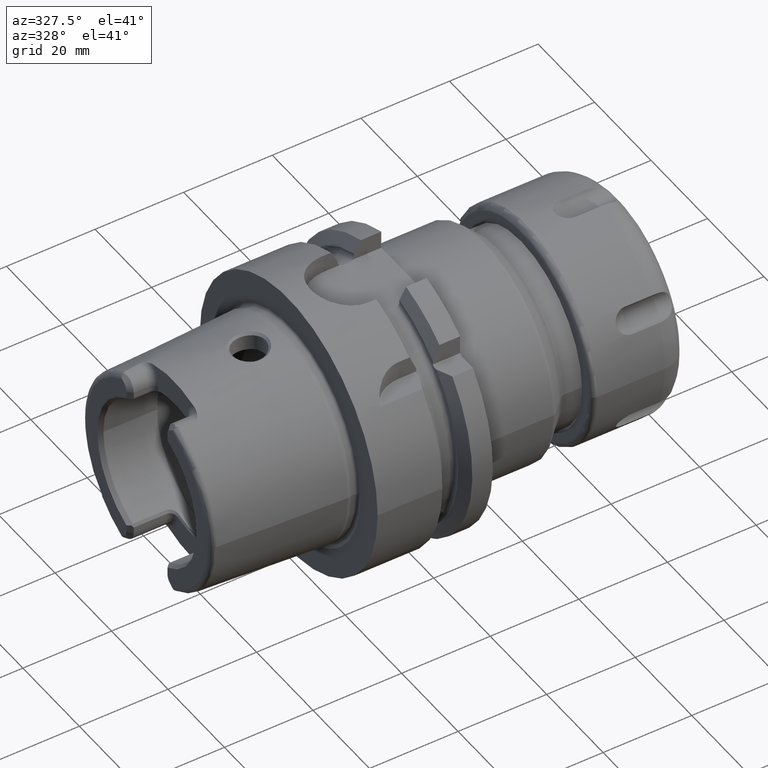
[diagram: clean part render]
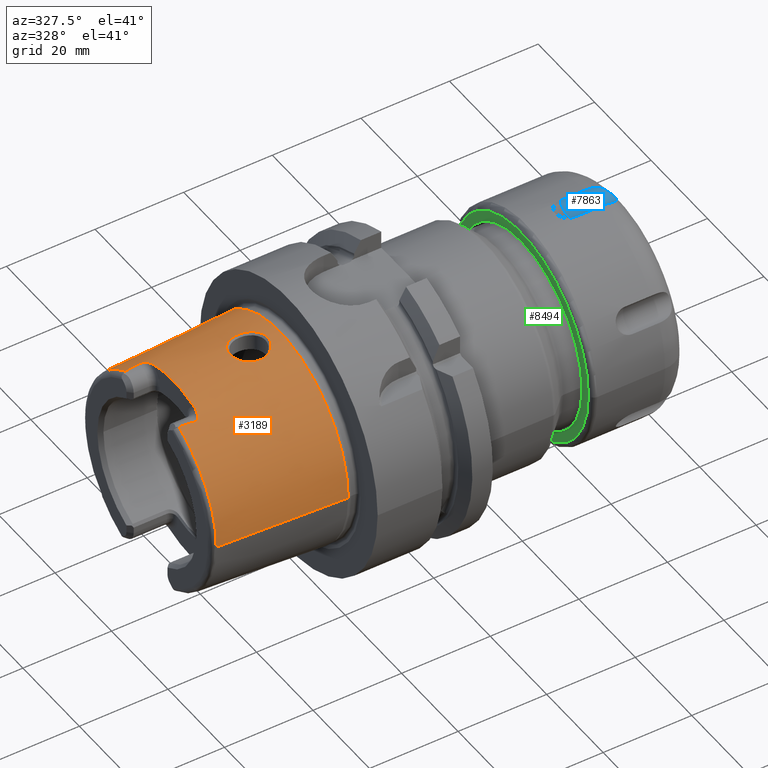
[diagram: same view with three faces highlighted in distinct colors, each labeled with its STEP entity id]
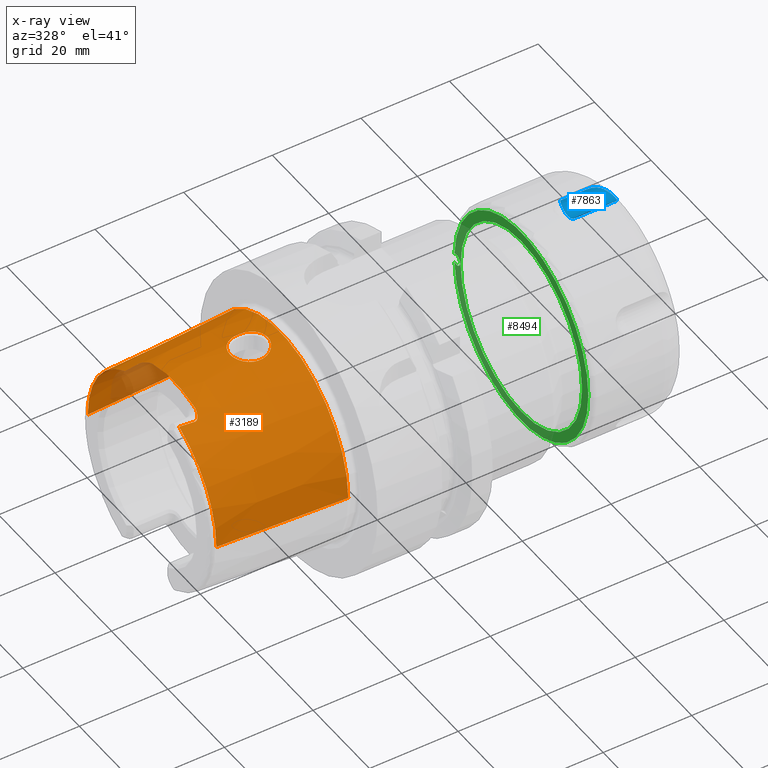
[diagram: x-ray of the same camera — body ghosted, the three highlighted faces saturated]
A machine part, auxiliary view with three faces highlighted in distinct colors.
The next image is the same camera in x-ray (body ghosted, the three faces saturated) — at least one of them is partly hidden behind the body in this view.
Their STEP definitions:

[orange] entity #3189 — the highlighted conical surface has half-angle 2.868 deg.
#2=CARTESIAN_POINT('',(-3.086004306431E1,-9.562027931336E0,2.067E1));
#3=CARTESIAN_POINT('',(-3.049253157278E1,-9.605880711653E0,2.067E1));
#4=CARTESIAN_POINT('',(-2.975362396220E1,-9.693552821268E0,2.067E1));
#5=CARTESIAN_POINT('',(-2.863363692789E1,-9.824971306479E0,2.067E1));
#6=CARTESIAN_POINT('',(-2.787917629619E1,-9.912538799101E0,2.067E1));
#7=CARTESIAN_POINT('',(-2.75E1,-9.956312881929E0,2.067E1));
#9=CARTESIAN_POINT('',(-2.6E1,0.E0,0.E0));
#10=DIRECTION('',(1.E0,0.E0,0.E0));
#11=DIRECTION('',(0.E0,3.233021702202E-1,9.462957818415E-1));
#12=AXIS2_PLACEMENT_3D('',#9,#10,#11);
#14=CARTESIAN_POINT('',(-2.75E1,9.956312881929E0,2.067E1));
#15=CARTESIAN_POINT('',(-2.787916500946E1,9.912540102101E0,2.067E1));
#16=CARTESIAN_POINT('',(-2.863361059702E1,9.824974374327E0,2.067E1));
#17=CARTESIAN_POINT('',(-2.975359777716E1,9.693555915617E0,2.067E1));
#18=CARTESIAN_POINT('',(-3.049252035285E1,9.605882050456E0,2.067E1));
#19=CARTESIAN_POINT('',(-3.086004306431E1,9.562027931336E0,2.067E1));
#21=CARTESIAN_POINT('',(-2.E0,0.E0,0.E0));
#22=DIRECTION('',(1.E0,0.E0,0.E0));
#23=DIRECTION('',(0.E0,1.E0,0.E0));
#24=AXIS2_PLACEMENT_3D('',#21,#22,#23);
#26=CARTESIAN_POINT('',(-1.324941786023E1,-7.219004501044E-9,2.365679941218E1));
#27=CARTESIAN_POINT('',(-1.324962652857E1,2.128419836803E-1,2.365678895818E1));
#28=CARTESIAN_POINT('',(-1.321789572653E1,6.392154004916E-1,2.365279437370E1));
#29=CARTESIAN_POINT('',(-1.306583173353E1,1.295455377947E0,2.363353567605E1));
#30=CARTESIAN_POINT('',(-1.280774848226E1,1.924363159712E0,2.360322882883E1));
#31=CARTESIAN_POINT('',(-1.245682539685E1,2.498002640667E0,2.356658532007E1));
#32=CARTESIAN_POINT('',(-1.202590717647E1,3.003748276320E0,2.352875153285E1));
#33=CARTESIAN_POINT('',(-1.151587453193E1,3.440667161266E0,2.349418467003E1));
#34=CARTESIAN_POINT('',(-1.094488701051E1,3.790928519035E0,2.346872738592E1));
#35=CARTESIAN_POINT('',(-1.032606556195E1,4.047968073685E0,2.345686676513E1));
#36=CARTESIAN_POINT('',(-9.674487886290E0,4.205448144478E0,2.346208039452E1));
#37=CARTESIAN_POINT('',(-9.005382482159E0,4.259666064034E0,2.348629251751E1));
#38=CARTESIAN_POINT('',(-8.334406518885E0,4.208654245636E0,2.352972397238E1));
#39=CARTESIAN_POINT('',(-7.678583145358E0,4.052835118832E0,2.359064506703E1));
#40=CARTESIAN_POINT('',(-7.054746219975E0,3.795297178824E0,2.366546684138E1));
#41=CARTESIAN_POINT('',(-6.478384090661E0,3.441929617339E0,2.374909717224E1));
#42=CARTESIAN_POINT('',(-5.963720829785E0,2.998888105398E0,2.383556837714E1));
#43=CARTESIAN_POINT('',(-5.531697254110E0,2.487245477785E0,2.391660020727E1));
#44=CARTESIAN_POINT('',(-5.183622696567E0,1.910877761534E0,2.398748891792E1));
#45=CARTESIAN_POINT('',(-4.930520871648E0,1.285429316774E0,2.404215083473E1));
#46=CARTESIAN_POINT('',(-4.781592632661E0,6.352567731875E-1,2.407559904029E1));
#47=CARTESIAN_POINT('',(-4.750478792548E0,2.114683342023E-1,2.408258846670E1));
#48=CARTESIAN_POINT('',(-4.750585905229E0,7.197553449570E-9,2.408258310050E1));
#50=CARTESIAN_POINT('',(-4.750585905229E0,7.197553449570E-9,2.408258310050E1));
#51=CARTESIAN_POINT('',(-4.750395627959E0,-2.105069288240E-1,2.408259263313E1));
#52=CARTESIAN_POINT('',(-4.781309836194E0,-6.330630552620E-1,2.407566909301E1));
#53=CARTESIAN_POINT('',(-4.930068182376E0,-1.284334675678E0,2.404224817580E1));
#54=CARTESIAN_POINT('',(-5.183732271360E0,-1.911208248299E0,2.398746160179E1));
#55=CARTESIAN_POINT('',(-5.531554832014E0,-2.486758661206E0,2.391664059803E1));
#56=CARTESIAN_POINT('',(-5.960736101322E0,-2.995606004120E0,2.383611484308E1));
#57=CARTESIAN_POINT('',(-6.472413726219E0,-3.437431533938E0,2.375005151539E1));
#58=CARTESIAN_POINT('',(-7.047774921505E0,-3.791791568104E0,2.366638920783E1));
#59=CARTESIAN_POINT('',(-7.671990993959E0,-4.050736119112E0,2.359134441504E1));
#60=CARTESIAN_POINT('',(-8.327799970975E0,-4.207619640495E0,2.353024681340E1));
#61=CARTESIAN_POINT('',(-8.998662135271E0,-4.259680399888E0,2.348663216787E1));
#62=CARTESIAN_POINT('',(-9.668037445633E0,-4.206488328283E0,2.346222081393E1));
#63=CARTESIAN_POINT('',(-1.031990079178E1,-4.049961979503E0,2.345683302195E1));
#64=CARTESIAN_POINT('',(-1.093870323089E1,-3.794046262990E0,2.346853209808E1));
#65=CARTESIAN_POINT('',(-1.151051650685E1,-3.444658410973E0,2.349386945058E1));
#66=CARTESIAN_POINT('',(-1.202283712979E1,-3.007012911900E0,2.352850073603E1));
#67=CARTESIAN_POINT('',(-1.245609200384E1,-2.499248587590E0,2.356650362943E1));
#68=CARTESIAN_POINT('',(-1.280745559330E1,-1.924878595842E0,2.360319856514E1));
#69=CARTESIAN_POINT('',(-1.306526541006E1,-1.297000138509E0,2.363346880977E1));
#70=CARTESIAN_POINT('',(-1.321765204718E1,-6.412116938996E-1,2.365275767433E1));
#71=CARTESIAN_POINT('',(-1.324954460014E1,-2.136894906074E-1,2.365679306269E1));
#72=CARTESIAN_POINT('',(-1.324941786023E1,-7.219004501044E-9,2.365679941218E1));
#82=CARTESIAN_POINT('',(-2.651259296226E1,-9.27E0,2.104082891384E1));
#83=CARTESIAN_POINT('',(-2.655060528934E1,-9.340723960488E0,2.100758892059E1));
#84=CARTESIAN_POINT('',(-2.663038504623E1,-9.471838743333E0,2.094458948833E1));
#85=CARTESIAN_POINT('',(-2.676092291608E1,-9.637362323001E0,2.086163997968E1));
#86=CARTESIAN_POINT('',(-2.690131837165E1,-9.770899105642E0,2.079157611E1));
#87=CARTESIAN_POINT('',(-2.705226454993E1,-9.871852756963E0,2.073538687848E1));
#88=CARTESIAN_POINT('',(-2.720441776005E1,-9.934823835429E0,2.069678496112E1));
#89=CARTESIAN_POINT('',(-2.735189841416E1,-9.963277454574E0,2.067488149845E1));
#90=CARTESIAN_POINT('',(-2.745092740764E1,-9.961978077101E0,2.067E1));
#91=CARTESIAN_POINT('',(-2.75E1,-9.956312881929E0,2.067E1));
#93=CARTESIAN_POINT('',(-2.6E1,-7.441787718571E0,2.178189005860E1));
#94=CARTESIAN_POINT('',(-2.6E1,-7.574673232080E0,2.173648969253E1));
#95=CARTESIAN_POINT('',(-2.601813511197E1,-7.850865569829E0,2.163846841914E1));
#96=CARTESIAN_POINT('',(-2.610760114915E1,-8.297034966034E0,2.146679982993E1));
#97=CARTESIAN_POINT('',(-2.626559360892E1,-8.768529603152E0,2.127027062942E1));
#98=CARTESIAN_POINT('',(-2.642147165719E1,-9.100463955368E0,2.112051021193E1));
#99=CARTESIAN_POINT('',(-2.651259296226E1,-9.27E0,2.104082891384E1));
#185=CARTESIAN_POINT('',(-3.086004306431E1,0.E0,0.E0));
#186=DIRECTION('',(1.E0,0.E0,0.E0));
#187=DIRECTION('',(0.E0,1.E0,0.E0));
#188=AXIS2_PLACEMENT_3D('',#185,#186,#187);
#196=CARTESIAN_POINT('',(-3.086004306431E1,9.562027931336E0,2.067E1));
#261=CARTESIAN_POINT('',(-3.086004306431E1,0.E0,0.E0));
#262=DIRECTION('',(1.E0,0.E0,0.E0));
#263=DIRECTION('',(0.E0,-4.198553792210E-1,9.075910205259E-1));
#264=AXIS2_PLACEMENT_3D('',#261,#262,#263);
#457=CARTESIAN_POINT('',(-2.651259296226E1,9.27E0,2.104082891384E1));
#458=CARTESIAN_POINT('',(-2.642147038701E1,9.100461592138E0,2.112051132264E1));
#459=CARTESIAN_POINT('',(-2.626559126698E1,8.768524006326E0,2.127027307791E1));
#460=CARTESIAN_POINT('',(-2.610760038346E1,8.297031203136E0,2.146680127908E1));
#461=CARTESIAN_POINT('',(-2.601813556642E1,7.850867870131E0,2.163846753656E1));
#462=CARTESIAN_POINT('',(-2.6E1,7.574674433427E0,2.173648928209E1));
#463=CARTESIAN_POINT('',(-2.6E1,7.441787718571E0,2.178189005860E1));
#497=CARTESIAN_POINT('',(-2.75E1,9.956312881929E0,2.067E1));
#498=CARTESIAN_POINT('',(-2.745017853421E1,9.962064530943E0,2.067E1));
#499=CARTESIAN_POINT('',(-2.734992708669E1,9.963297705486E0,2.067498167063E1));
#500=CARTESIAN_POINT('',(-2.719976747307E1,9.933459927686E0,2.069769932459E1));
#501=CARTESIAN_POINT('',(-2.704939607884E1,9.870085988272E0,2.073638612523E1));
#502=CARTESIAN_POINT('',(-2.690048936387E1,9.770127639355E0,2.079198258623E1));
#503=CARTESIAN_POINT('',(-2.676049508867E1,9.636879759274E0,2.086188624037E1));
#504=CARTESIAN_POINT('',(-2.663016689843E1,9.471495400784E0,2.094475592633E1));
#505=CARTESIAN_POINT('',(-2.655053916050E1,9.340600924250E0,2.100764674716E1));
#506=CARTESIAN_POINT('',(-2.651259296226E1,9.27E0,2.104082891384E1));
#763=DIRECTION('',(-9.987474205320E-1,5.003588692862E-2,0.E0));
#764=VECTOR('',#763,2.889623789861E1);
#765=CARTESIAN_POINT('',(-2.E0,-2.422042414966E1,0.E0));
#766=LINE('',#765,#764);
#772=DIRECTION('',(-9.987474205320E-1,-5.003588692862E-2,0.E0));
#773=VECTOR('',#772,2.889623789861E1);
#774=CARTESIAN_POINT('',(-2.E0,2.422042414966E1,0.E0));
#775=LINE('',#774,#773);
#2688=CARTESIAN_POINT('',(-2.E0,2.422042414966E1,0.E0));
#2689=CARTESIAN_POINT('',(-2.E0,-2.422042414966E1,0.E0));
#2690=VERTEX_POINT('',#2688);
#2691=VERTEX_POINT('',#2689);
#2692=CARTESIAN_POINT('',(-3.086004306431E1,2.277457525750E1,0.E0));
#2693=VERTEX_POINT('',#2692);
#2694=CARTESIAN_POINT('',(-3.086004306431E1,-2.277457525750E1,0.E0));
#2695=VERTEX_POINT('',#2694);
#2733=VERTEX_POINT('',#196);
#2734=CARTESIAN_POINT('',(-3.086004306431E1,-9.562027931336E0,2.067E1));
#2735=VERTEX_POINT('',#2734);
#2745=CARTESIAN_POINT('',(-2.6E1,7.441787718571E0,2.178189005860E1));
#2746=VERTEX_POINT('',#2745);
#2749=CARTESIAN_POINT('',(-2.75E1,9.956312881929E0,2.067E1));
#2750=VERTEX_POINT('',#2749);
#2751=CARTESIAN_POINT('',(-2.6E1,-7.441787718571E0,2.178189005860E1));
#2752=VERTEX_POINT('',#2751);
#2755=CARTESIAN_POINT('',(-2.75E1,-9.956312881929E0,2.067E1));
#2756=VERTEX_POINT('',#2755);
#2757=VERTEX_POINT('',#506);
#2758=VERTEX_POINT('',#82);
#2899=VERTEX_POINT('',#26);
#2900=VERTEX_POINT('',#48);
#3152=CARTESIAN_POINT('',(-1.643002153216E1,0.E0,0.E0));
#3153=DIRECTION('',(1.E0,0.E0,0.E0));
#3154=DIRECTION('',(0.E0,-1.E0,0.E0));
#3155=AXIS2_PLACEMENT_3D('',#3152,#3153,#3154);
#3156=CONICAL_SURFACE('',#3155,2.349749970358E1,2.868042729042E0);
#3158=ORIENTED_EDGE('',*,*,#3157,.T.);
#3160=ORIENTED_EDGE('',*,*,#3159,.F.);
#3162=ORIENTED_EDGE('',*,*,#3161,.F.);
#3164=ORIENTED_EDGE('',*,*,#3163,.F.);
#3166=ORIENTED_EDGE('',*,*,#3165,.F.);
#3168=ORIENTED_EDGE('',*,*,#3167,.F.);
#3170=ORIENTED_EDGE('',*,*,#3169,.T.);
#3172=ORIENTED_EDGE('',*,*,#3171,.F.);
#3174=ORIENTED_EDGE('',*,*,#3173,.F.);
#3176=ORIENTED_EDGE('',*,*,#3175,.T.);
#3178=ORIENTED_EDGE('',*,*,#3177,.T.);
#3180=ORIENTED_EDGE('',*,*,#3179,.F.);
#3181=EDGE_LOOP('',(#3158,#3160,#3162,#3164,#3166,#3168,#3170,#3172,#3174,#3176,
#3178,#3180));
#3182=FACE_OUTER_BOUND('',#3181,.F.);
#3184=ORIENTED_EDGE('',*,*,#3183,.F.);
#3186=ORIENTED_EDGE('',*,*,#3185,.F.);
#3187=EDGE_LOOP('',(#3184,#3186));
#3188=FACE_BOUND('',#3187,.F.);
#3189=ADVANCED_FACE('',(#3182,#3188),#3156,.T.);
#8=B_SPLINE_CURVE_WITH_KNOTS('',3,(#2,#3,#4,#5,#6,#7),.UNSPECIFIED.,.F.,.F.,(4,
1,1,4),(0.E0,3.333333333333E-1,6.666666666667E-1,1.E0),.UNSPECIFIED.);
#13=CIRCLE('',#12,2.301805680272E1);
#20=B_SPLINE_CURVE_WITH_KNOTS('',3,(#14,#15,#16,#17,#18,#19),.UNSPECIFIED.,.F.,
.F.,(4,1,1,4),(0.E0,3.333333333333E-1,6.666666666667E-1,1.E0),.UNSPECIFIED.);
#25=CIRCLE('',#24,2.422042414966E1);
#49=B_SPLINE_CURVE_WITH_KNOTS('',3,(#26,#27,#28,#29,#30,#31,#32,#33,#34,#35,#36,
#37,#38,#39,#40,#41,#42,#43,#44,#45,#46,#47,#48),.UNSPECIFIED.,.F.,.F.,(4,1,1,1,
1,1,1,1,1,1,1,1,1,1,1,1,1,1,1,1,4),(0.E0,5.E-2,1.E-1,1.5E-1,2.E-1,2.5E-1,3.E-1,
3.5E-1,4.E-1,4.5E-1,5.E-1,5.5E-1,6.E-1,6.5E-1,7.E-1,7.5E-1,8.E-1,8.5E-1,9.E-1,
9.5E-1,1.E0),.UNSPECIFIED.);
#73=B_SPLINE_CURVE_WITH_KNOTS('',3,(#50,#51,#52,#53,#54,#55,#56,#57,#58,#59,#60,
#61,#62,#63,#64,#65,#66,#67,#68,#69,#70,#71,#72),.UNSPECIFIED.,.F.,.F.,(4,1,1,1,
1,1,1,1,1,1,1,1,1,1,1,1,1,1,1,1,4),(0.E0,5.E-2,1.E-1,1.5E-1,2.E-1,2.5E-1,3.E-1,
3.5E-1,4.E-1,4.5E-1,5.E-1,5.5E-1,6.E-1,6.5E-1,7.E-1,7.5E-1,8.E-1,8.5E-1,9.E-1,
9.5E-1,1.E0),.UNSPECIFIED.);
#92=B_SPLINE_CURVE_WITH_KNOTS('',3,(#82,#83,#84,#85,#86,#87,#88,#89,#90,#91),
.UNSPECIFIED.,.F.,.F.,(4,1,1,1,1,1,1,4),(0.E0,1.428571428571E-1,
2.857142857143E-1,4.285714285714E-1,5.714285714286E-1,7.142857142857E-1,
8.571428571429E-1,1.E0),.UNSPECIFIED.);
#100=B_SPLINE_CURVE_WITH_KNOTS('',3,(#93,#94,#95,#96,#97,#98,#99),.UNSPECIFIED.,
.F.,.F.,(4,1,1,1,4),(0.E0,2.5E-1,5.E-1,7.5E-1,1.E0),.UNSPECIFIED.);
#189=CIRCLE('',#188,2.277457525750E1);
#265=CIRCLE('',#264,2.277457525750E1);
#464=B_SPLINE_CURVE_WITH_KNOTS('',3,(#457,#458,#459,#460,#461,#462,#463),
.UNSPECIFIED.,.F.,.F.,(4,1,1,1,4),(0.E0,2.5E-1,5.E-1,7.5E-1,1.E0),
.UNSPECIFIED.);
#507=B_SPLINE_CURVE_WITH_KNOTS('',3,(#497,#498,#499,#500,#501,#502,#503,#504,
#505,#506),.UNSPECIFIED.,.F.,.F.,(4,1,1,1,1,1,1,4),(0.E0,1.428571428571E-1,
2.857142857143E-1,4.285714285714E-1,5.714285714286E-1,7.142857142857E-1,
8.571428571429E-1,1.E0),.UNSPECIFIED.);
#3157=EDGE_CURVE('',#2735,#2756,#8,.T.);
#3159=EDGE_CURVE('',#2758,#2756,#92,.T.);
#3161=EDGE_CURVE('',#2752,#2758,#100,.T.);
#3163=EDGE_CURVE('',#2746,#2752,#13,.T.);
#3165=EDGE_CURVE('',#2757,#2746,#464,.T.);
#3167=EDGE_CURVE('',#2750,#2757,#507,.T.);
#3169=EDGE_CURVE('',#2750,#2733,#20,.T.);
#3171=EDGE_CURVE('',#2693,#2733,#189,.T.);
#3173=EDGE_CURVE('',#2690,#2693,#775,.T.);
#3175=EDGE_CURVE('',#2690,#2691,#25,.T.);
#3177=EDGE_CURVE('',#2691,#2695,#766,.T.);
#3179=EDGE_CURVE('',#2735,#2695,#265,.T.);
#3183=EDGE_CURVE('',#2899,#2900,#49,.T.);
#3185=EDGE_CURVE('',#2900,#2899,#73,.T.);

[blue] entity #7863 — the highlighted cylindrical surface (edge-blend (fillet) strip) has radius 3 mm, axis along (1, 0, 0).
#6640=DIRECTION('',(-1.E0,0.E0,0.E0));
#6641=VECTOR('',#6640,6.E0);
#6642=CARTESIAN_POINT('',(1.65E1,2.788676588829E0,2.484397880539E1));
#6643=LINE('',#6642,#6641);
#6644=DIRECTION('',(-1.E0,0.E0,0.E0));
#6645=VECTOR('',#6644,6.E0);
#6646=CARTESIAN_POINT('',(1.65E1,-2.788676588829E0,2.484397880539E1));
#6647=LINE('',#6646,#6645);
#6687=CARTESIAN_POINT('',(1.65E1,2.788676588829E0,2.484397880539E1));
#6688=CARTESIAN_POINT('',(1.694706257007E1,2.788676588829E0,2.484397880539E1));
#6689=CARTESIAN_POINT('',(1.777228444612E1,2.752928704125E0,2.474906643897E1));
#6690=CARTESIAN_POINT('',(1.880827481800E1,2.598699242378E0,2.443102066380E1));
#6691=CARTESIAN_POINT('',(1.963227743652E1,2.324782556568E0,2.402894412950E1));
#6692=CARTESIAN_POINT('',(2.024731428844E1,1.925239554784E0,2.362398936830E1));
#6693=CARTESIAN_POINT('',(2.065989941214E1,1.427982484067E0,2.328941427700E1));
#6694=CARTESIAN_POINT('',(2.090381678624E1,8.838675461664E-1,2.306300969865E1));
#6695=CARTESIAN_POINT('',(2.102163461927E1,2.982656604448E-1,2.294476407209E1));
#6696=CARTESIAN_POINT('',(2.102100654642E1,-3.045316302245E-1,
2.294540757610E1));
#6697=CARTESIAN_POINT('',(2.090198438464E1,-8.898656739259E-1,
2.306481197708E1));
#6698=CARTESIAN_POINT('',(2.065614663489E1,-1.434043662309E0,2.329270537285E1));
#6699=CARTESIAN_POINT('',(2.024251867477E1,-1.929290235210E0,2.362750071037E1));
#6700=CARTESIAN_POINT('',(1.962692984992E1,-2.327140057901E0,2.403195356973E1));
#6701=CARTESIAN_POINT('',(1.880364472632E1,-2.599596225315E0,2.443273169938E1));
#6702=CARTESIAN_POINT('',(1.776968653786E1,-2.753065328423E0,2.474945166371E1));
#6703=CARTESIAN_POINT('',(1.694611419548E1,-2.788676588829E0,2.484397880539E1));
#6704=CARTESIAN_POINT('',(1.65E1,-2.788676588829E0,2.484397880539E1));
#6706=CARTESIAN_POINT('',(1.05E1,0.E0,2.595E1));
#6707=DIRECTION('',(-1.E0,0.E0,0.E0));
#6708=DIRECTION('',(0.E0,9.295588629431E-1,-3.686737315350E-1));
#6709=AXIS2_PLACEMENT_3D('',#6706,#6707,#6708);
#7599=CARTESIAN_POINT('',(1.65E1,2.788676588829E0,2.484397880539E1));
#7600=CARTESIAN_POINT('',(1.05E1,2.788676588829E0,2.484397880539E1));
#7601=VERTEX_POINT('',#7599);
#7602=VERTEX_POINT('',#7600);
#7603=CARTESIAN_POINT('',(1.65E1,-2.788676588829E0,2.484397880539E1));
#7604=CARTESIAN_POINT('',(1.05E1,-2.788676588829E0,2.484397880539E1));
#7605=VERTEX_POINT('',#7603);
#7606=VERTEX_POINT('',#7604);
#7851=CARTESIAN_POINT('',(6.75E0,0.E0,2.595E1));
#7852=DIRECTION('',(1.E0,0.E0,0.E0));
#7853=DIRECTION('',(0.E0,0.E0,-1.E0));
#7854=AXIS2_PLACEMENT_3D('',#7851,#7852,#7853);
#7855=CYLINDRICAL_SURFACE('',#7854,3.E0);
#7856=ORIENTED_EDGE('',*,*,#7835,.T.);
#7857=ORIENTED_EDGE('',*,*,#7807,.T.);
#7859=ORIENTED_EDGE('',*,*,#7858,.F.);
#7860=ORIENTED_EDGE('',*,*,#7803,.F.);
#7861=EDGE_LOOP('',(#7856,#7857,#7859,#7860));
#7862=FACE_OUTER_BOUND('',#7861,.F.);
#7863=ADVANCED_FACE('',(#7862),#7855,.F.);
#6705=B_SPLINE_CURVE_WITH_KNOTS('',3,(#6687,#6688,#6689,#6690,#6691,#6692,#6693,
#6694,#6695,#6696,#6697,#6698,#6699,#6700,#6701,#6702,#6703,#6704),
.UNSPECIFIED.,.F.,.F.,(4,1,1,1,1,1,1,1,1,1,1,1,1,1,1,4),(0.E0,6.666666666667E-2,
1.333333333333E-1,2.E-1,2.666666666667E-1,3.333333333333E-1,4.E-1,
4.666666666667E-1,5.333333333333E-1,6.E-1,6.666666666667E-1,7.333333333333E-1,
8.E-1,8.666666666667E-1,9.333333333333E-1,1.E0),.UNSPECIFIED.);
#6710=CIRCLE('',#6709,3.E0);
#7803=EDGE_CURVE('',#7601,#7602,#6643,.T.);
#7807=EDGE_CURVE('',#7605,#7606,#6647,.T.);
#7835=EDGE_CURVE('',#7601,#7605,#6705,.T.);
#7858=EDGE_CURVE('',#7602,#7606,#6710,.T.);

[green] entity #8494 — the highlighted planar face has unit normal (-1, 0, 0).
#7290=CARTESIAN_POINT('',(0.E0,0.E0,0.E0));
#7291=DIRECTION('',(-1.E0,0.E0,0.E0));
#7292=DIRECTION('',(0.E0,1.E0,0.E0));
#7293=AXIS2_PLACEMENT_3D('',#7290,#7291,#7292);
#7295=CARTESIAN_POINT('',(0.E0,0.E0,0.E0));
#7296=DIRECTION('',(-1.E0,0.E0,0.E0));
#7297=DIRECTION('',(0.E0,-1.E0,0.E0));
#7298=AXIS2_PLACEMENT_3D('',#7295,#7296,#7297);
#7300=CARTESIAN_POINT('',(0.E0,0.E0,0.E0));
#7301=DIRECTION('',(-1.E0,0.E0,0.E0));
#7302=DIRECTION('',(0.E0,9.990846681922E-1,-4.277646295853E-2));
#7303=AXIS2_PLACEMENT_3D('',#7300,#7301,#7302);
#7305=CARTESIAN_POINT('',(0.E0,0.E0,0.E0));
#7306=DIRECTION('',(1.E0,0.E0,0.E0));
#7307=DIRECTION('',(0.E0,9.990846681922E-1,4.277646295853E-2));
#7308=AXIS2_PLACEMENT_3D('',#7305,#7306,#7307);
#7320=CARTESIAN_POINT('',(0.E0,2.3E1,0.E0));
#7321=DIRECTION('',(1.E0,0.E0,0.E0));
#7322=DIRECTION('',(0.E0,5.826086956522E-1,8.127527962120E-1));
#7323=AXIS2_PLACEMENT_3D('',#7320,#7321,#7322);
#7568=CARTESIAN_POINT('',(0.E0,-2.375E1,0.E0));
#7570=VERTEX_POINT('',#7568);
#7627=CARTESIAN_POINT('',(0.E0,2.15E1,0.E0));
#7628=VERTEX_POINT('',#7627);
#7629=CARTESIAN_POINT('',(0.E0,-2.15E1,0.E0));
#7630=VERTEX_POINT('',#7629);
#7665=CARTESIAN_POINT('',(0.E0,2.372826086957E1,-1.015940995265E0));
#7666=VERTEX_POINT('',#7665);
#7667=CARTESIAN_POINT('',(0.E0,2.372826086957E1,1.015940995265E0));
#7668=VERTEX_POINT('',#7667);
#8479=CARTESIAN_POINT('',(0.E0,0.E0,0.E0));
#8480=DIRECTION('',(-1.E0,0.E0,0.E0));
#8481=DIRECTION('',(0.E0,1.E0,0.E0));
#8482=AXIS2_PLACEMENT_3D('',#8479,#8480,#8481);
#8483=PLANE('',#8482);
#8484=ORIENTED_EDGE('',*,*,#7748,.F.);
#8486=ORIENTED_EDGE('',*,*,#8485,.F.);
#8487=ORIENTED_EDGE('',*,*,#7766,.T.);
#8488=EDGE_LOOP('',(#8484,#8486,#8487));
#8489=FACE_OUTER_BOUND('',#8488,.F.);
#8490=ORIENTED_EDGE('',*,*,#8461,.T.);
#8491=ORIENTED_EDGE('',*,*,#8446,.T.);
#8492=EDGE_LOOP('',(#8490,#8491));
#8493=FACE_BOUND('',#8492,.F.);
#8494=ADVANCED_FACE('',(#8489,#8493),#8483,.T.);
#7294=CIRCLE('',#7293,2.15E1);
#7299=CIRCLE('',#7298,2.15E1);
#7304=CIRCLE('',#7303,2.375E1);
#7309=CIRCLE('',#7308,2.375E1);
#7324=CIRCLE('',#7323,1.25E0);
#7748=EDGE_CURVE('',#7666,#7570,#7304,.T.);
#7766=EDGE_CURVE('',#7668,#7570,#7309,.T.);
#8446=EDGE_CURVE('',#7630,#7628,#7299,.T.);
#8461=EDGE_CURVE('',#7628,#7630,#7294,.T.);
#8485=EDGE_CURVE('',#7668,#7666,#7324,.T.);